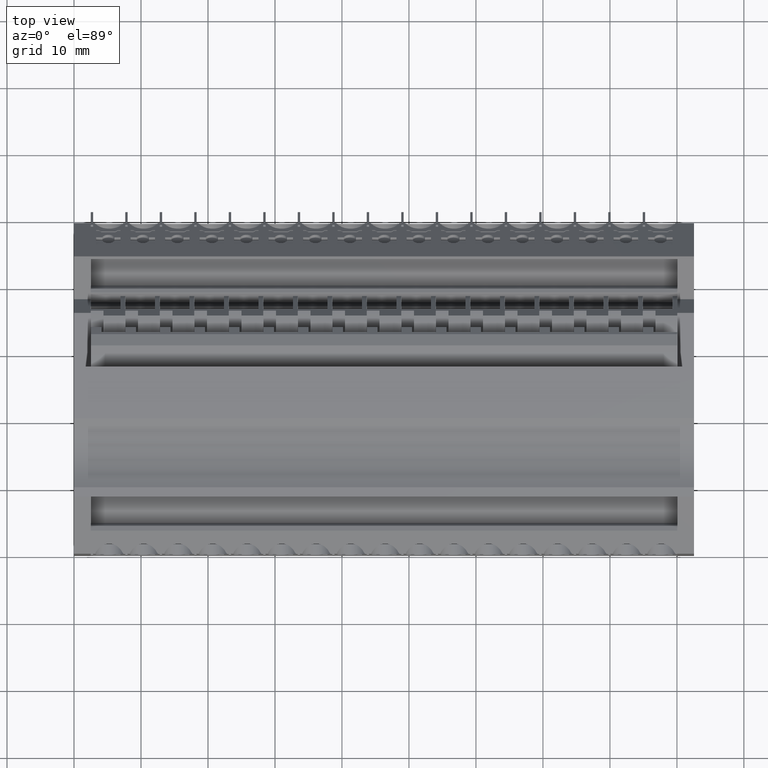
[diagram: clean part render]
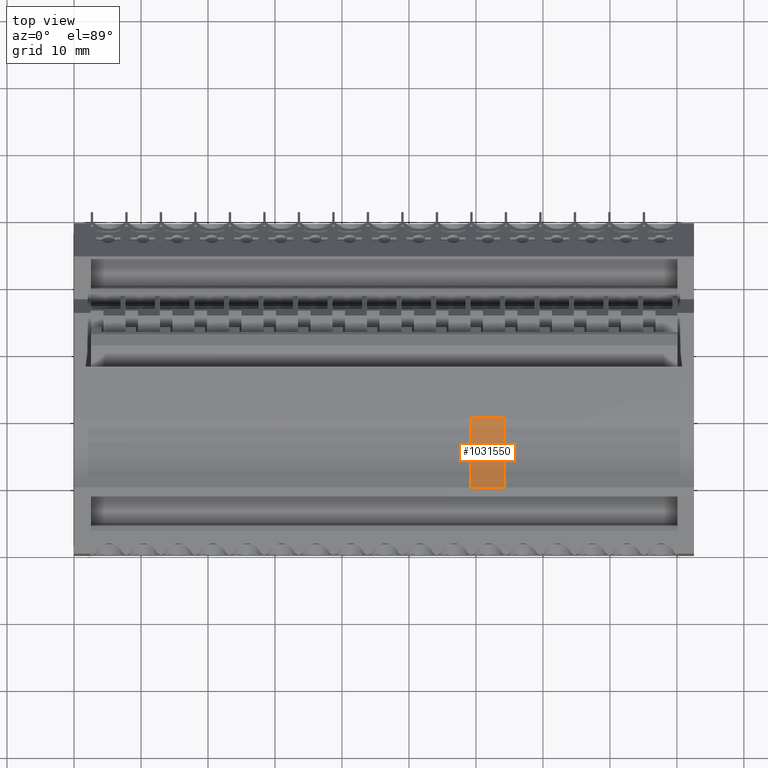
[diagram: same view with one face highlighted and labeled with its STEP entity id]
A machine part, top view. The second image highlights one B-rep face of the part: STEP entity #1031550.
In plain terms, the highlighted cylindrical surface (partial cylindrical patch) has radius 10 mm, axis along (1, 0, -0).
Its self-contained STEP definition (entity closure, byte-faithful):
#65510=CARTESIAN_POINT('',(440.590572543565,697.534347620336,
82.9450001635446));
#65520=DIRECTION('',(3.65710502038586E-10,4.95141851786755E-10,1.));
#65530=VECTOR('',#65520,1.);
#65540=LINE('',#65510,#65530);
#98800=CARTESIAN_POINT('',(430.260883799414,697.534347634237,
82.9450001673223));
#98810=DIRECTION('',(3.65710502038586E-10,4.95141851786755E-10,1.));
#98820=VECTOR('',#98810,1.);
#98830=LINE('',#98800,#98820);
#105360=CARTESIAN_POINT('',(435.425728183013,706.097313387596,
82.9450001611936));
#105370=DIRECTION('',(3.65710502038586E-10,4.95141851786755E-10,1.));
#105380=DIRECTION('',(-0.386155668810907,-0.922433628747999,
5.97956747321646E-10));
#105390=AXIS2_PLACEMENT_3D('',#105360,#105370,#105380);
#105400=CYLINDRICAL_SURFACE('',#105390,10.);
#368670=CARTESIAN_POINT('',(430.260883816593,697.534347657496,
129.91999998463));
#368680=VERTEX_POINT('',#368670);
#418150=CARTESIAN_POINT('',(440.590572560745,697.534347650817,
129.919999983105));
#418160=VERTEX_POINT('',#418150);
#418380=CARTESIAN_POINT('',(435.425728200192,706.097313410855,
129.919999978501));
#418390=DIRECTION('',(3.65710502038586E-10,4.95141851786755E-10,1.));
#418400=DIRECTION('',(-0.386155668810907,-0.922433628747999,
5.97956728772318E-10));
#418410=AXIS2_PLACEMENT_3D('',#418380,#418390,#418400);
#418420=CIRCLE('',#418410,10.);
#418430=EDGE_CURVE('',#368680,#418160,#418420,.T.);
#613140=CARTESIAN_POINT('',(430.26088381471,697.534347654946,
124.769999984747));
#613150=VERTEX_POINT('',#613140);
#613190=CARTESIAN_POINT('',(440.590572561886,697.53434764287,
124.76999998097));
#613200=VERTEX_POINT('',#613190);
#613230=CARTESIAN_POINT('',(435.425728198309,706.097313408305,
124.769999978619));
#613240=DIRECTION('',(3.65710502038586E-10,4.95141851786755E-10,1.));
#613250=DIRECTION('',(-0.386155668810907,-0.922433628747999,
5.97956728772318E-10));
#613260=AXIS2_PLACEMENT_3D('',#613230,#613240,#613250);
#613270=CIRCLE('',#613260,10.);
#613280=EDGE_CURVE('',#613150,#613200,#613270,.T.);
#1031350=EDGE_CURVE('',#613200,#418160,#65540,.T.);
#1031480=EDGE_CURVE('',#613150,#368680,#98830,.T.);
#1031490=ORIENTED_EDGE('',*,*,#1031480,.T.);
#1031500=ORIENTED_EDGE('',*,*,#613280,.F.);
#1031510=ORIENTED_EDGE('',*,*,#1031350,.F.);
#1031520=ORIENTED_EDGE('',*,*,#418430,.T.);
#1031530=EDGE_LOOP('',(#1031520,#1031510,#1031500,#1031490));
#1031540=FACE_OUTER_BOUND('',#1031530,.T.);
#1031550=ADVANCED_FACE('',(#1031540),#105400,.F.);